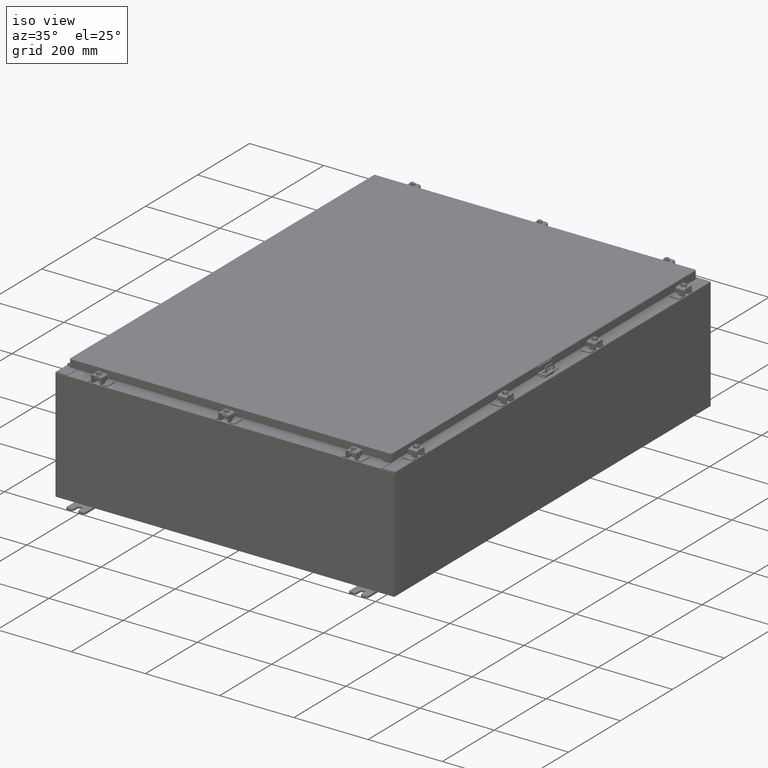
[diagram: clean part render]
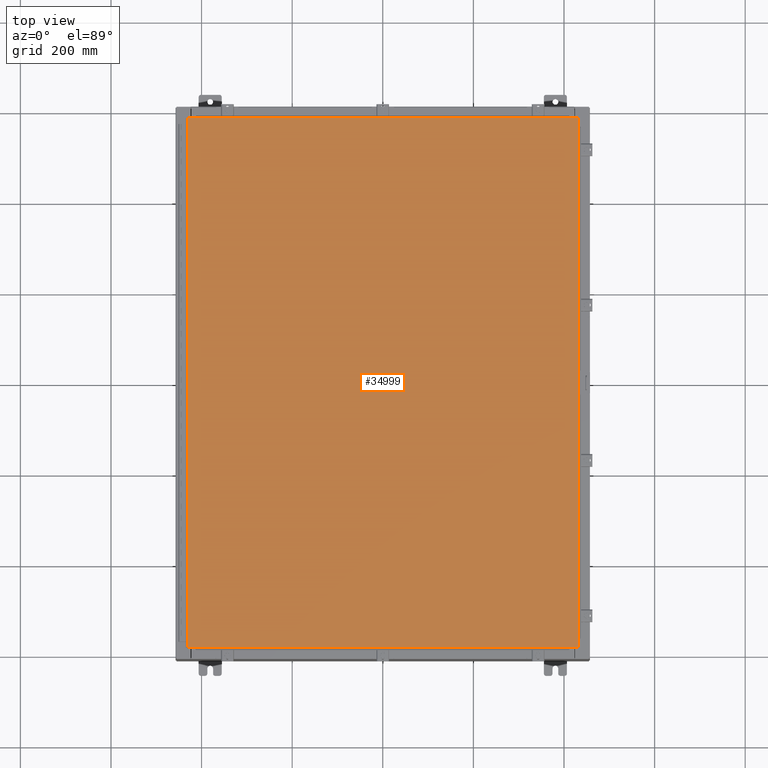
[diagram: tour spotlight — one face highlighted and labeled with its STEP entity id]
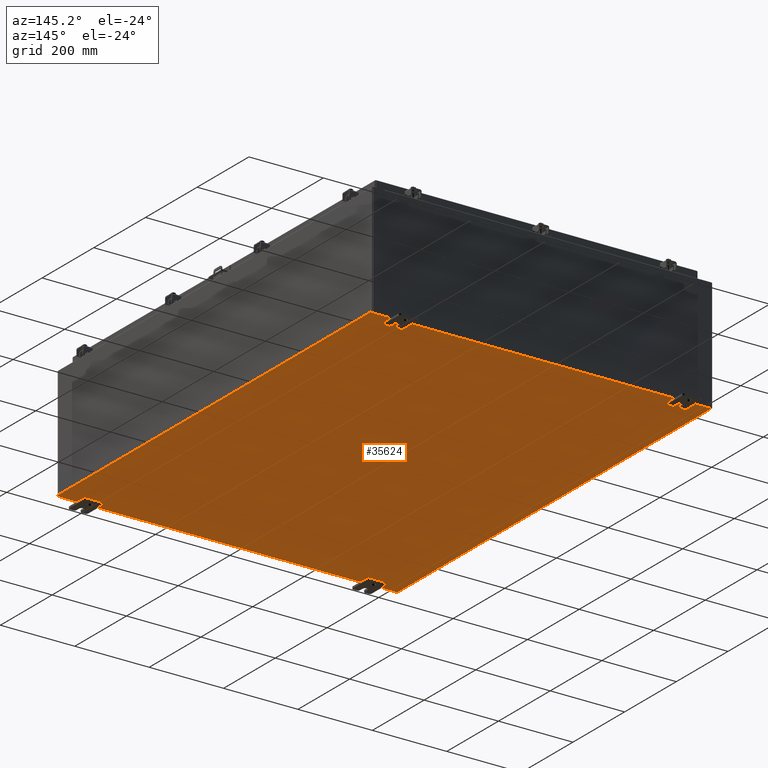
[diagram: tour spotlight — one face highlighted and labeled with its STEP entity id]
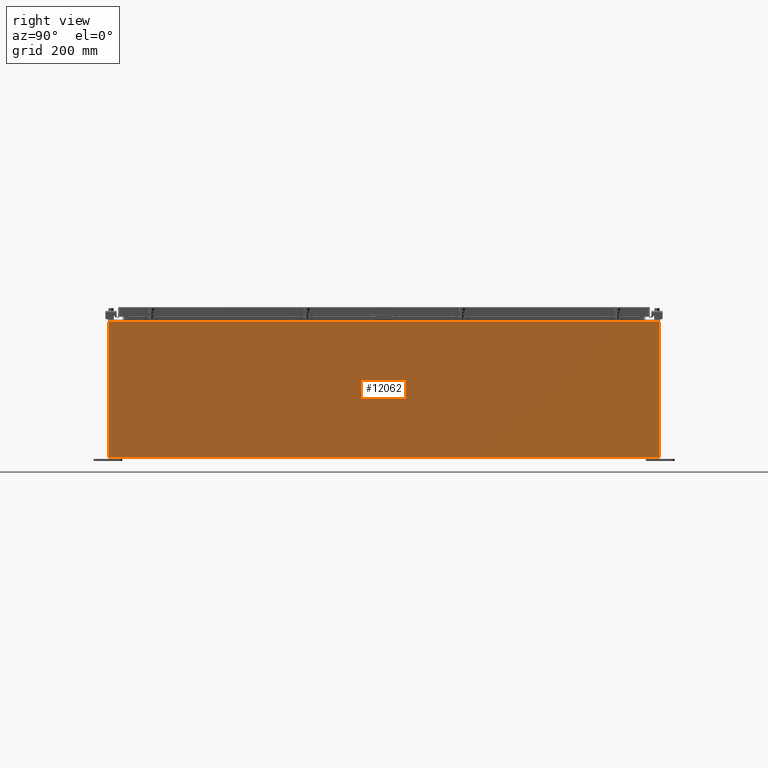
[diagram: tour spotlight — one face highlighted and labeled with its STEP entity id]
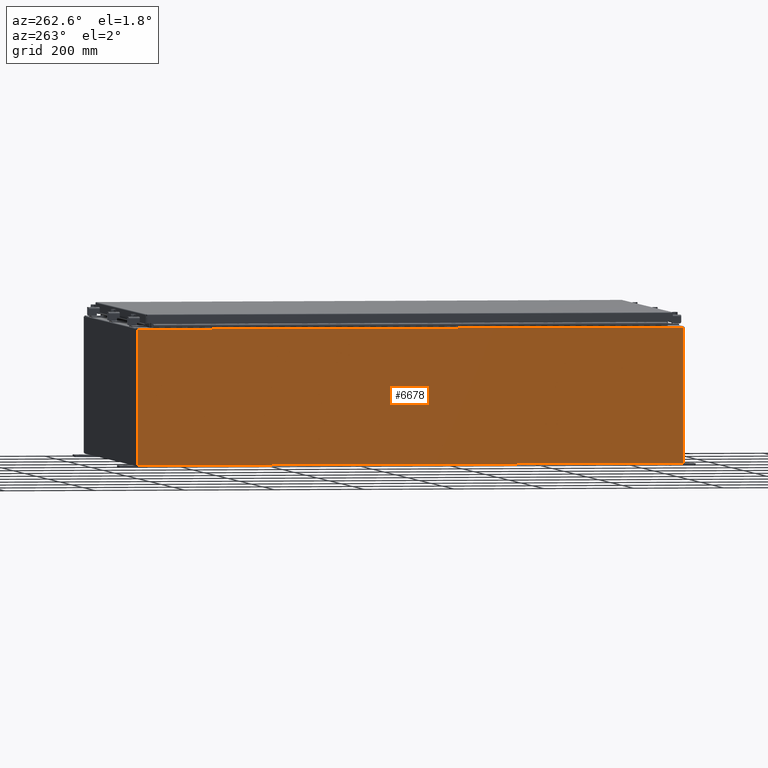
[diagram: tour spotlight — one face highlighted and labeled with its STEP entity id]
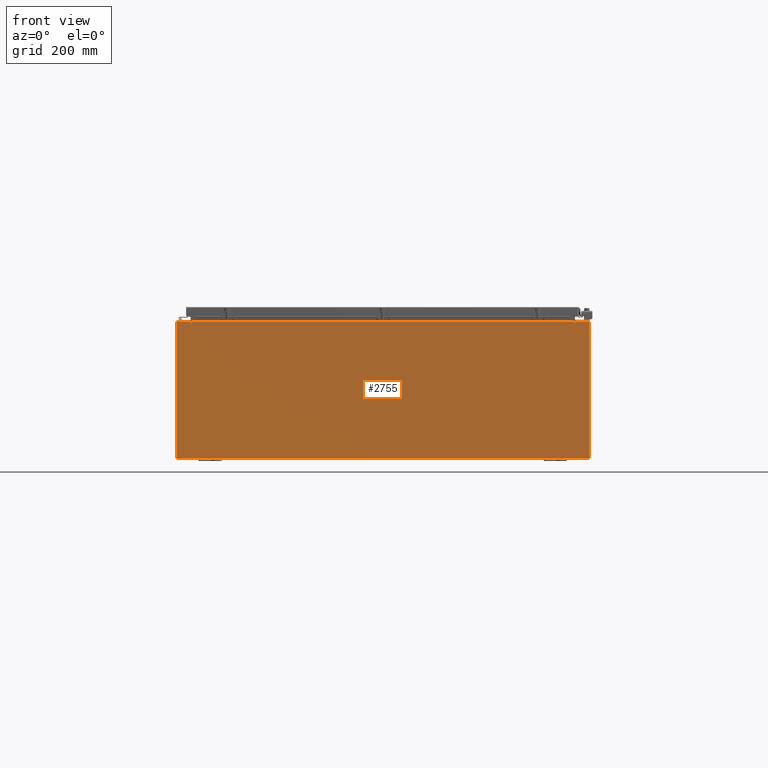
[diagram: tour spotlight — one face highlighted and labeled with its STEP entity id]
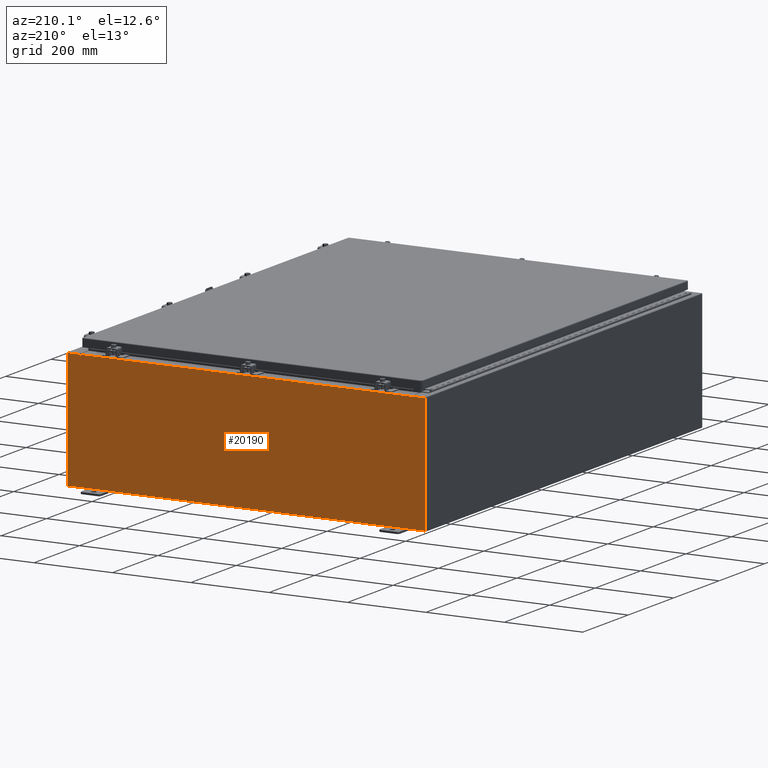
[diagram: tour spotlight — one face highlighted and labeled with its STEP entity id]
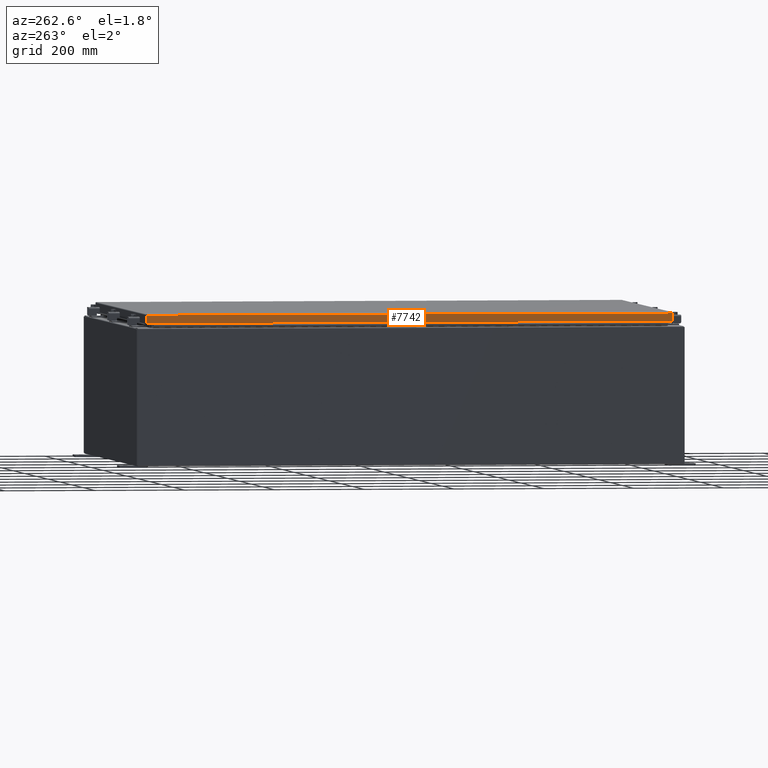
[diagram: tour spotlight — one face highlighted and labeled with its STEP entity id]
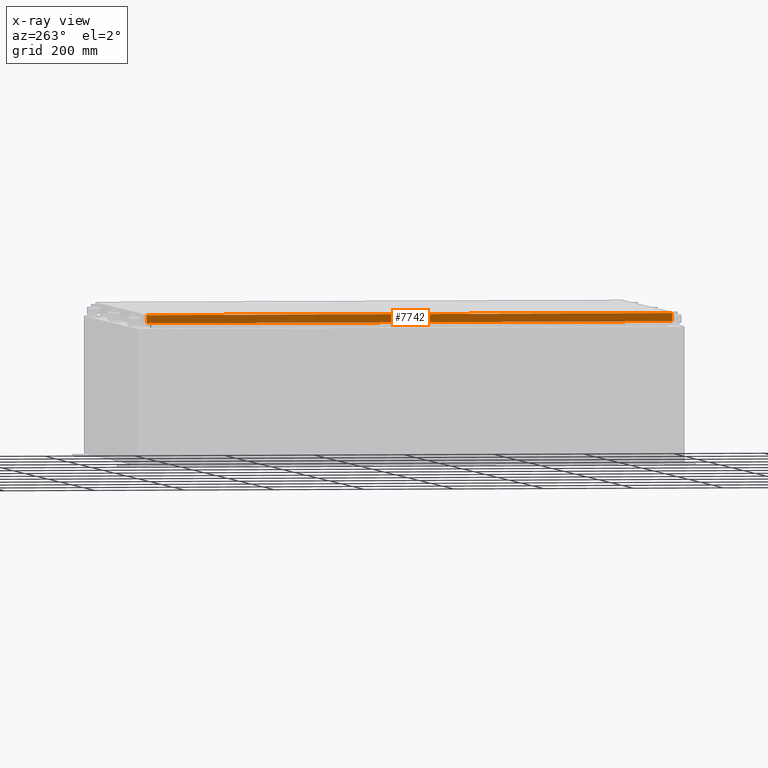
[diagram: x-ray of the same camera — body ghosted, this tour face saturated]
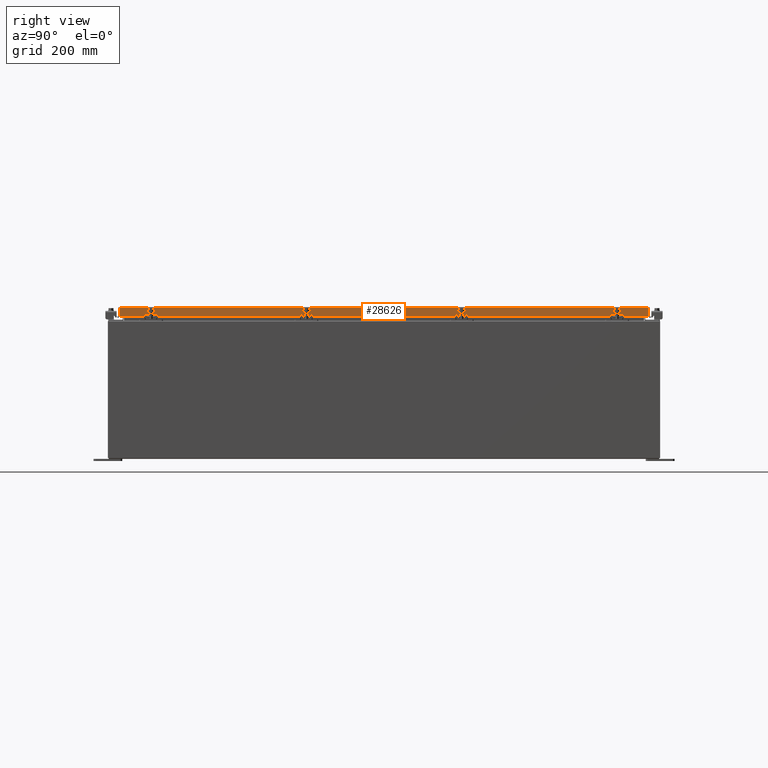
[diagram: tour spotlight — one face highlighted and labeled with its STEP entity id]
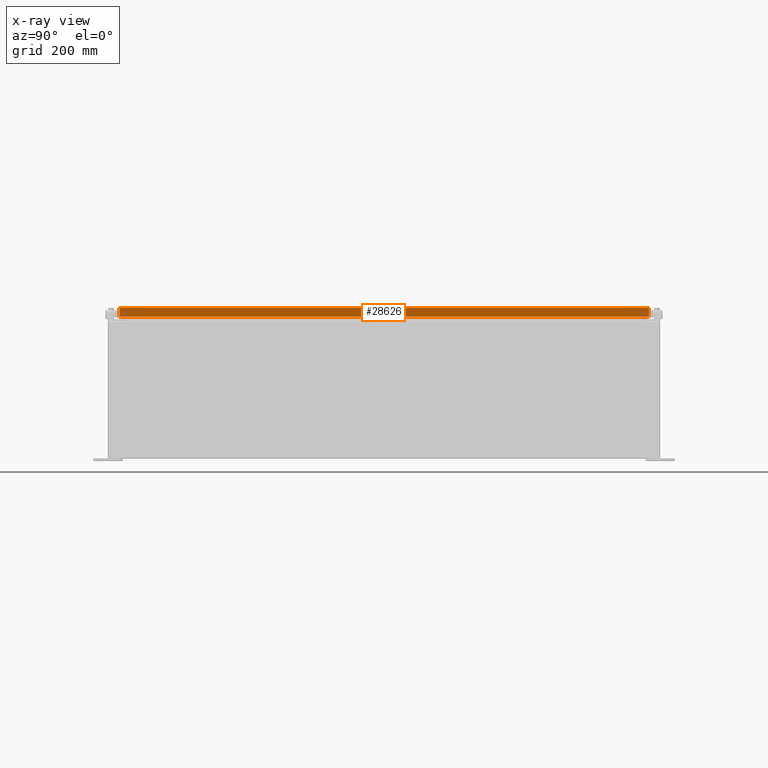
[diagram: x-ray of the same camera — body ghosted, this tour face saturated]
A machine part: a face-by-face anatomy tour. The part has 3115 B-rep faces; the first image is the clean iso view, then the 8 largest visible faces are spotlighted one at a time (largest first), each with its STEP entity span.

Face 1 — top view, entity #34999. In plain terms, the highlighted planar face has unit normal (0, 0, -1).
Definition (entity closure, byte-faithful):
#3818 = CARTESIAN_POINT ( 'NONE',  ( -16.99029999999998400, 23.00630000000001000, -2.185478394931410600E-015 ) ) ;
#3933 = ORIENTED_EDGE ( 'NONE', *, *, #45377, .T. ) ;
#6550 = LINE ( 'NONE', #10605, #27957 ) ;
#7895 = LINE ( 'NONE', #3818, #49281 ) ;
#10605 = CARTESIAN_POINT ( 'NONE',  ( -16.99029999999999800, -23.00630000000000300, 2.185478394931410600E-015 ) ) ;
#10749 = VERTEX_POINT ( 'NONE', #33810 ) ;
#12261 = EDGE_CURVE ( 'NONE', #33669, #36243, #7895, .T. ) ;
#14615 = VERTEX_POINT ( 'NONE', #17972 ) ;
#16515 = EDGE_LOOP ( 'NONE', ( #25681, #36708, #3933, #17167 ) ) ;
#17167 = ORIENTED_EDGE ( 'NONE', *, *, #12261, .T. ) ;
#17231 = LINE ( 'NONE', #33685, #27251 ) ;
#17972 = CARTESIAN_POINT ( 'NONE',  ( 16.99029999999999800, -23.00630000000000300, 0.0000000000000000000 ) ) ;
#19678 = DIRECTION ( 'NONE',  ( -1.000000000000000000, 0.0000000000000000000, -0.0000000000000000000 ) ) ;
#23776 = CARTESIAN_POINT ( 'NONE',  ( 0.0000000000000000000, 0.0000000000000000000, 0.0000000000000000000 ) ) ;
#25029 = EDGE_CURVE ( 'NONE', #36243, #14615, #6550, .T. ) ;
#25483 = DIRECTION ( 'NONE',  ( 0.0000000000000000000, -1.000000000000000000, 0.0000000000000000000 ) ) ;
#25681 = ORIENTED_EDGE ( 'NONE', *, *, #25029, .T. ) ;
#27251 = VECTOR ( 'NONE', #33871, 39.37007874015748100 ) ;
#27957 = VECTOR ( 'NONE', #44777, 39.37007874015748100 ) ;
#28892 = CARTESIAN_POINT ( 'NONE',  ( -16.99029999999999800, -23.00630000000000300, 2.185478394931410600E-015 ) ) ;
#32158 = AXIS2_PLACEMENT_3D ( 'NONE', #23776, #45252, #19678 ) ;
#33445 = DIRECTION ( 'NONE',  ( -1.000000000000000000, -0.0000000000000000000, -0.0000000000000000000 ) ) ;
#33669 = VERTEX_POINT ( 'NONE', #53001 ) ;
#33685 = CARTESIAN_POINT ( 'NONE',  ( 16.99029999999999800, -23.00630000000000300, 0.0000000000000000000 ) ) ;
#33810 = CARTESIAN_POINT ( 'NONE',  ( 16.99029999999999800, 23.00630000000001000, 2.185478394931410600E-015 ) ) ;
#33871 = DIRECTION ( 'NONE',  ( 0.0000000000000000000, 1.000000000000000000, 0.0000000000000000000 ) ) ;
#34999 = ADVANCED_FACE ( 'NONE', ( #55164 ), #45055, .F. ) ;
#36243 = VERTEX_POINT ( 'NONE', #28892 ) ;
#36708 = ORIENTED_EDGE ( 'NONE', *, *, #44828, .T. ) ;
#37732 = CARTESIAN_POINT ( 'NONE',  ( 16.99029999999999800, 23.00630000000001000, 2.185478394931410600E-015 ) ) ;
#44530 = VECTOR ( 'NONE', #33445, 39.37007874015748100 ) ;
#44777 = DIRECTION ( 'NONE',  ( 1.000000000000000000, -0.0000000000000000000, -0.0000000000000000000 ) ) ;
#44828 = EDGE_CURVE ( 'NONE', #14615, #10749, #17231, .T. ) ;
#45055 = PLANE ( 'NONE',  #32158 ) ;
#45252 = DIRECTION ( 'NONE',  ( 0.0000000000000000000, 0.0000000000000000000, -1.000000000000000000 ) ) ;
#45377 = EDGE_CURVE ( 'NONE', #10749, #33669, #47214, .T. ) ;
#47214 = LINE ( 'NONE', #37732, #44530 ) ;
#49281 = VECTOR ( 'NONE', #25483, 39.37007874015748100 ) ;
#53001 = CARTESIAN_POINT ( 'NONE',  ( -16.99029999999998400, 23.00630000000001000, -2.185478394931410600E-015 ) ) ;
#55164 = FACE_OUTER_BOUND ( 'NONE', #16515, .T. ) ;

Face 2 — auxiliary view, entity #35624. In plain terms, the highlighted planar face has unit normal (0, 0, -1).
Definition (entity closure, byte-faithful):
#292 = AXIS2_PLACEMENT_3D ( 'NONE', #23700, #36591, #11004 ) ;
#881 = VECTOR ( 'NONE', #7656, 39.37007874015748100 ) ;
#2393 = PLANE ( 'NONE',  #292 ) ;
#2821 = LINE ( 'NONE', #54660, #24222 ) ;
#4912 = LINE ( 'NONE', #40803, #14933 ) ;
#5675 = FACE_OUTER_BOUND ( 'NONE', #9224, .T. ) ;
#7656 = DIRECTION ( 'NONE',  ( -0.0000000000000000000, 1.000000000000000000, -0.0000000000000000000 ) ) ;
#7847 = DIRECTION ( 'NONE',  ( 1.000000000000000000, 1.214154663850783700E-016, 0.0000000000000000000 ) ) ;
#8036 = EDGE_CURVE ( 'NONE', #43776, #44877, #4912, .T. ) ;
#8827 = EDGE_CURVE ( 'NONE', #9049, #44877, #2821, .T. ) ;
#9049 = VERTEX_POINT ( 'NONE', #47755 ) ;
#9224 = EDGE_LOOP ( 'NONE', ( #32586, #40580, #11742, #55209 ) ) ;
#11004 = DIRECTION ( 'NONE',  ( -1.000000000000000000, 0.0000000000000000000, -0.0000000000000000000 ) ) ;
#11742 = ORIENTED_EDGE ( 'NONE', *, *, #55109, .F. ) ;
#13785 = VERTEX_POINT ( 'NONE', #44209 ) ;
#14569 = VECTOR ( 'NONE', #41676, 39.37007874015748100 ) ;
#14933 = VECTOR ( 'NONE', #32218, 39.37007874015748100 ) ;
#17075 = CARTESIAN_POINT ( 'NONE',  ( 17.91229999999999500, -23.92530000000000000, -0.07469999999999998900 ) ) ;
#23700 = CARTESIAN_POINT ( 'NONE',  ( 0.0000000000000000000, 0.0000000000000000000, -0.07469999999999998900 ) ) ;
#24222 = VECTOR ( 'NONE', #7847, 39.37007874015748100 ) ;
#32218 = DIRECTION ( 'NONE',  ( -0.0000000000000000000, -1.000000000000000000, -8.208677865577646300E-017 ) ) ;
#32586 = ORIENTED_EDGE ( 'NONE', *, *, #8827, .F. ) ;
#35624 = ADVANCED_FACE ( 'NONE', ( #5675 ), #2393, .T. ) ;
#36591 = DIRECTION ( 'NONE',  ( 0.0000000000000000000, 0.0000000000000000000, -1.000000000000000000 ) ) ;
#37094 = CARTESIAN_POINT ( 'NONE',  ( 17.91229999999999500, 23.92529999999998600, -0.07469999999999688000 ) ) ;
#37381 = CARTESIAN_POINT ( 'NONE',  ( -18.00000000000000400, 23.92530000000000000, -0.07469999999999998900 ) ) ;
#37532 = CARTESIAN_POINT ( 'NONE',  ( -17.91230000000000500, -23.92529999999998900, -0.07469999999999996100 ) ) ;
#38651 = LINE ( 'NONE', #37381, #14569 ) ;
#40580 = ORIENTED_EDGE ( 'NONE', *, *, #41119, .T. ) ;
#40803 = CARTESIAN_POINT ( 'NONE',  ( 17.91229999999999500, 23.92529999999998900, -0.07469999999999688000 ) ) ;
#41119 = EDGE_CURVE ( 'NONE', #9049, #13785, #46339, .T. ) ;
#41676 = DIRECTION ( 'NONE',  ( -1.000000000000000000, -0.0000000000000000000, -0.0000000000000000000 ) ) ;
#43776 = VERTEX_POINT ( 'NONE', #37094 ) ;
#44209 = CARTESIAN_POINT ( 'NONE',  ( -17.91230000000000500, 23.92529999999998900, -0.07469999999999998900 ) ) ;
#44877 = VERTEX_POINT ( 'NONE', #17075 ) ;
#46339 = LINE ( 'NONE', #37532, #881 ) ;
#47755 = CARTESIAN_POINT ( 'NONE',  ( -17.91230000000000500, -23.92529999999998600, -0.07469999999999996100 ) ) ;
#54660 = CARTESIAN_POINT ( 'NONE',  ( -18.00000000000000400, -23.92530000000000400, -0.07469999999999998900 ) ) ;
#55109 = EDGE_CURVE ( 'NONE', #43776, #13785, #38651, .T. ) ;
#55209 = ORIENTED_EDGE ( 'NONE', *, *, #8036, .T. ) ;

Face 3 — right view, entity #12062. In plain terms, the highlighted planar face has unit normal (-1, 0, 0).
Definition (entity closure, byte-faithful):
#2394 = LINE ( 'NONE', #44686, #23797 ) ;
#2894 = CARTESIAN_POINT ( 'NONE',  ( 17.99999999999999600, 0.0000000000000000000, -6.293494815404046100E-014 ) ) ;
#3059 = VERTEX_POINT ( 'NONE', #36049 ) ;
#5367 = VECTOR ( 'NONE', #53531, 39.37007874015748100 ) ;
#7198 = DIRECTION ( 'NONE',  ( 3.482016343714355100E-015, 0.0000000000000000000, 1.000000000000000000 ) ) ;
#8542 = VECTOR ( 'NONE', #13520, 39.37007874015748100 ) ;
#9221 = CARTESIAN_POINT ( 'NONE',  ( 18.00000000000003900, 23.92529999999998900, 11.83760000000000200 ) ) ;
#9438 = CARTESIAN_POINT ( 'NONE',  ( 17.99999999999999600, -23.92529999999998900, -6.293494815404046100E-014 ) ) ;
#9747 = EDGE_CURVE ( 'NONE', #44353, #3059, #13508, .T. ) ;
#10856 = ORIENTED_EDGE ( 'NONE', *, *, #43170, .T. ) ;
#11886 = ORIENTED_EDGE ( 'NONE', *, *, #9747, .T. ) ;
#12062 = ADVANCED_FACE ( 'NONE', ( #24599 ), #54028, .F. ) ;
#12359 = EDGE_CURVE ( 'NONE', #50318, #44353, #42619, .T. ) ;
#13372 = VERTEX_POINT ( 'NONE', #20502 ) ;
#13508 = LINE ( 'NONE', #9438, #33558 ) ;
#13520 = DIRECTION ( 'NONE',  ( -0.0000000000000000000, -1.000000000000000000, -0.0000000000000000000 ) ) ;
#19414 = CARTESIAN_POINT ( 'NONE',  ( 17.99999999999999600, 23.92529999999998900, -6.293494815404046100E-014 ) ) ;
#20502 = CARTESIAN_POINT ( 'NONE',  ( 17.99999999999999600, 23.92529999999998600, 0.01300000000000203600 ) ) ;
#23797 = VECTOR ( 'NONE', #48957, 39.37007874015748100 ) ;
#24599 = FACE_OUTER_BOUND ( 'NONE', #38932, .T. ) ;
#27567 = DIRECTION ( 'NONE',  ( -3.482016343714355500E-015, 0.0000000000000000000, -1.000000000000000000 ) ) ;
#30477 = CARTESIAN_POINT ( 'NONE',  ( 18.00000000000003900, 23.92529999999998600, 11.83760000000000200 ) ) ;
#32806 = DIRECTION ( 'NONE',  ( -1.000000000000000000, 0.0000000000000000000, 3.482016343714355100E-015 ) ) ;
#33558 = VECTOR ( 'NONE', #27567, 39.37007874015748100 ) ;
#34932 = EDGE_CURVE ( 'NONE', #13372, #3059, #2394, .T. ) ;
#36049 = CARTESIAN_POINT ( 'NONE',  ( 17.99999999999999600, -23.92529999999998900, 0.01299999999999898100 ) ) ;
#36569 = ORIENTED_EDGE ( 'NONE', *, *, #12359, .T. ) ;
#38932 = EDGE_LOOP ( 'NONE', ( #36569, #11886, #52694, #10856 ) ) ;
#39524 = CARTESIAN_POINT ( 'NONE',  ( 18.00000000000003900, -23.92529999999998900, 11.83760000000000200 ) ) ;
#40794 = LINE ( 'NONE', #19414, #5367 ) ;
#42619 = LINE ( 'NONE', #9221, #8542 ) ;
#43170 = EDGE_CURVE ( 'NONE', #13372, #50318, #40794, .T. ) ;
#44353 = VERTEX_POINT ( 'NONE', #39524 ) ;
#44686 = CARTESIAN_POINT ( 'NONE',  ( 17.99999999999999600, -23.92529999999998900, 0.01299999999999985200 ) ) ;
#48196 = AXIS2_PLACEMENT_3D ( 'NONE', #2894, #32806, #7198 ) ;
#48957 = DIRECTION ( 'NONE',  ( -1.590339826456887700E-031, -1.000000000000000000, -4.567295697298285000E-017 ) ) ;
#50318 = VERTEX_POINT ( 'NONE', #30477 ) ;
#52694 = ORIENTED_EDGE ( 'NONE', *, *, #34932, .F. ) ;
#53531 = DIRECTION ( 'NONE',  ( 3.482016343714355500E-015, 0.0000000000000000000, 1.000000000000000000 ) ) ;
#54028 = PLANE ( 'NONE',  #48196 ) ;

Face 4 — auxiliary view, entity #6678. In plain terms, the highlighted planar face has unit normal (1, 0, 0).
Definition (entity closure, byte-faithful):
#2089 = CARTESIAN_POINT ( 'NONE',  ( -18.00000000000000400, -23.92529999999999600, -6.293494815404046100E-014 ) ) ;
#3721 = CARTESIAN_POINT ( 'NONE',  ( -18.00000000000000400, 23.92529999999998900, 0.01299999999999985200 ) ) ;
#4787 = ORIENTED_EDGE ( 'NONE', *, *, #41692, .T. ) ;
#4900 = FACE_OUTER_BOUND ( 'NONE', #41946, .T. ) ;
#6678 = ADVANCED_FACE ( 'NONE', ( #4900 ), #53348, .F. ) ;
#6692 = CARTESIAN_POINT ( 'NONE',  ( -18.00000000000000400, -23.92529999999998600, 0.01299999999999985200 ) ) ;
#6763 = CARTESIAN_POINT ( 'NONE',  ( -18.00000000000004600, -23.92529999999998600, 11.83760000000000200 ) ) ;
#8751 = DIRECTION ( 'NONE',  ( 0.0000000000000000000, 1.000000000000000000, 0.0000000000000000000 ) ) ;
#8841 = EDGE_CURVE ( 'NONE', #43186, #40530, #12865, .T. ) ;
#9133 = ORIENTED_EDGE ( 'NONE', *, *, #20095, .T. ) ;
#10060 = DIRECTION ( 'NONE',  ( 3.482016343714355500E-015, 0.0000000000000000000, -1.000000000000000000 ) ) ;
#10435 = AXIS2_PLACEMENT_3D ( 'NONE', #44984, #47996, #22437 ) ;
#12342 = ORIENTED_EDGE ( 'NONE', *, *, #8841, .F. ) ;
#12601 = EDGE_CURVE ( 'NONE', #43186, #12634, #44585, .T. ) ;
#12634 = VERTEX_POINT ( 'NONE', #6763 ) ;
#12865 = LINE ( 'NONE', #3721, #32925 ) ;
#19121 = DIRECTION ( 'NONE',  ( -3.482016343714355500E-015, 0.0000000000000000000, 1.000000000000000000 ) ) ;
#20095 = EDGE_CURVE ( 'NONE', #41831, #40530, #43060, .T. ) ;
#21877 = VECTOR ( 'NONE', #19121, 39.37007874015748100 ) ;
#22437 = DIRECTION ( 'NONE',  ( 3.482016343714355100E-015, 0.0000000000000000000, -1.000000000000000000 ) ) ;
#26829 = CARTESIAN_POINT ( 'NONE',  ( -18.00000000000004600, 23.92529999999998900, 11.83760000000000200 ) ) ;
#28353 = ORIENTED_EDGE ( 'NONE', *, *, #12601, .T. ) ;
#29319 = DIRECTION ( 'NONE',  ( -0.0000000000000000000, 1.000000000000000000, -0.0000000000000000000 ) ) ;
#29591 = LINE ( 'NONE', #34325, #42292 ) ;
#32925 = VECTOR ( 'NONE', #29319, 39.37007874015748100 ) ;
#33047 = VECTOR ( 'NONE', #10060, 39.37007874015748100 ) ;
#34325 = CARTESIAN_POINT ( 'NONE',  ( -18.00000000000004600, -23.92529999999998900, 11.83760000000000200 ) ) ;
#35632 = CARTESIAN_POINT ( 'NONE',  ( -18.00000000000000400, 23.92529999999998900, -6.293494815404046100E-014 ) ) ;
#40530 = VERTEX_POINT ( 'NONE', #49696 ) ;
#41692 = EDGE_CURVE ( 'NONE', #12634, #41831, #29591, .T. ) ;
#41831 = VERTEX_POINT ( 'NONE', #26829 ) ;
#41946 = EDGE_LOOP ( 'NONE', ( #4787, #9133, #12342, #28353 ) ) ;
#42292 = VECTOR ( 'NONE', #8751, 39.37007874015748100 ) ;
#43060 = LINE ( 'NONE', #35632, #33047 ) ;
#43186 = VERTEX_POINT ( 'NONE', #6692 ) ;
#44585 = LINE ( 'NONE', #2089, #21877 ) ;
#44984 = CARTESIAN_POINT ( 'NONE',  ( -18.00000000000000400, 0.0000000000000000000, -6.293494815404046100E-014 ) ) ;
#47996 = DIRECTION ( 'NONE',  ( 1.000000000000000000, 0.0000000000000000000, 3.482016343714355100E-015 ) ) ;
#49696 = CARTESIAN_POINT ( 'NONE',  ( -18.00000000000000400, 23.92529999999998900, 0.01299999999999985200 ) ) ;
#53348 = PLANE ( 'NONE',  #10435 ) ;

Face 5 — front view, entity #2755. In plain terms, the highlighted planar face has unit normal (0, 1, -0).
Definition (entity closure, byte-faithful):
#541 = AXIS2_PLACEMENT_3D ( 'NONE', #31986, #6379, #36260 ) ;
#2373 = VECTOR ( 'NONE', #37829, 39.37007874015748100 ) ;
#2421 = EDGE_CURVE ( 'NONE', #43807, #31854, #5380, .T. ) ;
#2755 = ADVANCED_FACE ( 'NONE', ( #30743 ), #4148, .F. ) ;
#2774 = LINE ( 'NONE', #24099, #14134 ) ;
#3120 = CARTESIAN_POINT ( 'NONE',  ( 16.63720000000000400, 0.0000000000000000000, 5.912300000000009900 ) ) ;
#3885 = VERTEX_POINT ( 'NONE', #31085 ) ;
#4148 = PLANE ( 'NONE',  #33185 ) ;
#4249 = CARTESIAN_POINT ( 'NONE',  ( -16.67455000000000000, 0.0000000000000000000, 5.874949999999986800 ) ) ;
#4626 = CARTESIAN_POINT ( 'NONE',  ( -17.92529999999999600, 0.0000000000000000000, 5.925299999999988500 ) ) ;
#5224 = ORIENTED_EDGE ( 'NONE', *, *, #40422, .F. ) ;
#5255 = EDGE_CURVE ( 'NONE', #31904, #32881, #23771, .T. ) ;
#5380 = LINE ( 'NONE', #43687, #34107 ) ;
#6379 = DIRECTION ( 'NONE',  ( 2.688223102148528000E-016, 1.000000000000000000, -1.677591767810434000E-016 ) ) ;
#6791 = VECTOR ( 'NONE', #49063, 39.37007874015748100 ) ;
#7067 = ORIENTED_EDGE ( 'NONE', *, *, #10476, .T. ) ;
#7080 = VECTOR ( 'NONE', #22989, 39.37007874015748100 ) ;
#7256 = LINE ( 'NONE', #31623, #51345 ) ;
#10088 = LINE ( 'NONE', #15156, #44138 ) ;
#10476 = EDGE_CURVE ( 'NONE', #11484, #31854, #10088, .T. ) ;
#11484 = VERTEX_POINT ( 'NONE', #24444 ) ;
#11630 = VERTEX_POINT ( 'NONE', #46826 ) ;
#11846 = VERTEX_POINT ( 'NONE', #35605 ) ;
#12074 = LINE ( 'NONE', #41588, #22100 ) ;
#14134 = VECTOR ( 'NONE', #53918, 39.37007874015748100 ) ;
#14877 = EDGE_CURVE ( 'NONE', #11846, #11630, #2774, .T. ) ;
#15156 = CARTESIAN_POINT ( 'NONE',  ( -16.63720000000000000, 0.0000000000000000000, 5.912299999999988600 ) ) ;
#16508 = CARTESIAN_POINT ( 'NONE',  ( 16.67455000000000700, 0.0000000000000000000, 5.925300000000009800 ) ) ;
#17051 = DIRECTION ( 'NONE',  ( -8.326672684688674100E-016, 1.677591767810434500E-016, -1.000000000000000000 ) ) ;
#17381 = DIRECTION ( 'NONE',  ( 2.688223102148528000E-016, 1.000000000000000000, -1.677591767810434000E-016 ) ) ;
#17466 = AXIS2_PLACEMENT_3D ( 'NONE', #42958, #17381, #47224 ) ;
#19910 = VERTEX_POINT ( 'NONE', #38658 ) ;
#20062 = ORIENTED_EDGE ( 'NONE', *, *, #14877, .T. ) ;
#20276 = CARTESIAN_POINT ( 'NONE',  ( 16.63720000000000400, 0.0000000000000000000, 5.874950000000009000 ) ) ;
#21007 = CARTESIAN_POINT ( 'NONE',  ( -16.67455000000000000, 0.0000000000000000000, -1.092739197465705300E-014 ) ) ;
#21462 = EDGE_LOOP ( 'NONE', ( #39679, #50665, #5224, #7067, #49454, #44213, #35516, #42240, #37729, #20062, #50288, #47897 ) ) ;
#21925 = EDGE_CURVE ( 'NONE', #19910, #11846, #29535, .T. ) ;
#22100 = VECTOR ( 'NONE', #33015, 39.37007874015748100 ) ;
#22989 = DIRECTION ( 'NONE',  ( 8.326672684688674100E-016, -1.677591767810434500E-016, 1.000000000000000000 ) ) ;
#23475 = EDGE_CURVE ( 'NONE', #32441, #3885, #12074, .T. ) ;
#23507 = CARTESIAN_POINT ( 'NONE',  ( 17.92530000000000400, 0.0000000000000000000, 5.925300000000009800 ) ) ;
#23771 = LINE ( 'NONE', #21007, #2373 ) ;
#23887 = CARTESIAN_POINT ( 'NONE',  ( -17.92529999999999600, 0.0000000000000000000, 5.925299999999988500 ) ) ;
#24099 = CARTESIAN_POINT ( 'NONE',  ( -17.92529999999999600, 0.0000000000000000000, -5.925300000000011600 ) ) ;
#24444 = CARTESIAN_POINT ( 'NONE',  ( -16.63720000000000000, 0.0000000000000000000, 5.912299999999988600 ) ) ;
#24788 = EDGE_CURVE ( 'NONE', #3885, #43807, #31309, .T. ) ;
#24820 = VERTEX_POINT ( 'NONE', #51686 ) ;
#26313 = EDGE_CURVE ( 'NONE', #11630, #34080, #49832, .T. ) ;
#27882 = CARTESIAN_POINT ( 'NONE',  ( -16.67455000000000000, 0.0000000000000000000, 5.925299999999988500 ) ) ;
#27997 = VECTOR ( 'NONE', #48674, 39.37007874015748100 ) ;
#29535 = LINE ( 'NONE', #23507, #6791 ) ;
#30743 = FACE_OUTER_BOUND ( 'NONE', #21462, .T. ) ;
#31085 = CARTESIAN_POINT ( 'NONE',  ( 16.67455000000000400, 0.0000000000000000000, 5.874950000000009000 ) ) ;
#31309 = CIRCLE ( 'NONE', #17466, 0.01867499999999949400 ) ;
#31623 = CARTESIAN_POINT ( 'NONE',  ( -16.63720000000000000, 0.0000000000000000000, -1.092739197465705300E-014 ) ) ;
#31854 = VERTEX_POINT ( 'NONE', #3120 ) ;
#31904 = VERTEX_POINT ( 'NONE', #4249 ) ;
#31986 = CARTESIAN_POINT ( 'NONE',  ( -16.65587499999999800, 0.0000000000000000000, 5.874949999999986800 ) ) ;
#32012 = LINE ( 'NONE', #44398, #27997 ) ;
#32441 = VERTEX_POINT ( 'NONE', #16508 ) ;
#32827 = EDGE_CURVE ( 'NONE', #24820, #31904, #47910, .T. ) ;
#32881 = VERTEX_POINT ( 'NONE', #27882 ) ;
#33015 = DIRECTION ( 'NONE',  ( -8.764412287646708500E-014, 1.677591767810201100E-016, -1.000000000000000000 ) ) ;
#33185 = AXIS2_PLACEMENT_3D ( 'NONE', #34034, #42626, #17051 ) ;
#34034 = CARTESIAN_POINT ( 'NONE',  ( 0.0000000000000000000, 0.0000000000000000000, 0.0000000000000000000 ) ) ;
#34080 = VERTEX_POINT ( 'NONE', #4626 ) ;
#34107 = VECTOR ( 'NONE', #39399, 39.37007874015748100 ) ;
#35516 = ORIENTED_EDGE ( 'NONE', *, *, #23475, .F. ) ;
#35605 = CARTESIAN_POINT ( 'NONE',  ( 17.92530000000000400, 0.0000000000000000000, -5.925299999999984000 ) ) ;
#36260 = DIRECTION ( 'NONE',  ( 0.0000000000000000000, 1.677591767810434500E-016, -1.000000000000000000 ) ) ;
#37715 = EDGE_CURVE ( 'NONE', #34080, #32881, #44199, .T. ) ;
#37729 = ORIENTED_EDGE ( 'NONE', *, *, #21925, .T. ) ;
#37829 = DIRECTION ( 'NONE',  ( 8.326672684688674100E-016, -1.677591767810434500E-016, 1.000000000000000000 ) ) ;
#38658 = CARTESIAN_POINT ( 'NONE',  ( 17.92530000000000400, 0.0000000000000000000, 5.925300000000009800 ) ) ;
#39399 = DIRECTION ( 'NONE',  ( 8.326672684688674100E-016, -1.677591767810434500E-016, 1.000000000000000000 ) ) ;
#39679 = ORIENTED_EDGE ( 'NONE', *, *, #5255, .F. ) ;
#40422 = EDGE_CURVE ( 'NONE', #11484, #24820, #7256, .T. ) ;
#41544 = VECTOR ( 'NONE', #49437, 39.37007874015748100 ) ;
#41588 = CARTESIAN_POINT ( 'NONE',  ( 16.67454999999949500, 0.0000000000000000000, -1.431488348680073800E-012 ) ) ;
#42240 = ORIENTED_EDGE ( 'NONE', *, *, #54839, .T. ) ;
#42626 = DIRECTION ( 'NONE',  ( -2.688223102148531000E-016, -1.000000000000000000, -1.677591767810432300E-016 ) ) ;
#42958 = CARTESIAN_POINT ( 'NONE',  ( 16.65587500000000500, 0.0000000000000000000, 5.874950000000009000 ) ) ;
#43687 = CARTESIAN_POINT ( 'NONE',  ( 16.63720000000000400, 0.0000000000000000000, 1.639108796198557900E-014 ) ) ;
#43807 = VERTEX_POINT ( 'NONE', #20276 ) ;
#44138 = VECTOR ( 'NONE', #45026, 39.37007874015748100 ) ;
#44199 = LINE ( 'NONE', #23887, #41544 ) ;
#44213 = ORIENTED_EDGE ( 'NONE', *, *, #24788, .F. ) ;
#44398 = CARTESIAN_POINT ( 'NONE',  ( -17.92529999999999600, 0.0000000000000000000, 5.925299999999988500 ) ) ;
#44483 = DIRECTION ( 'NONE',  ( -8.326672684688674100E-016, 1.677591767810434500E-016, -1.000000000000000000 ) ) ;
#45026 = DIRECTION ( 'NONE',  ( 1.000000000000000000, 2.688223102148527500E-016, 8.326672684688674100E-016 ) ) ;
#46826 = CARTESIAN_POINT ( 'NONE',  ( -17.92529999999999600, 0.0000000000000000000, -5.925300000000011600 ) ) ;
#47224 = DIRECTION ( 'NONE',  ( 0.0000000000000000000, 1.677591767810434500E-016, -1.000000000000000000 ) ) ;
#47897 = ORIENTED_EDGE ( 'NONE', *, *, #37715, .T. ) ;
#47910 = CIRCLE ( 'NONE', #541, 0.01867499999999949400 ) ;
#48674 = DIRECTION ( 'NONE',  ( 1.000000000000000000, 2.688223102148527500E-016, 8.631476285595129400E-016 ) ) ;
#49063 = DIRECTION ( 'NONE',  ( -8.326672684688674100E-016, 1.677591767810434500E-016, -1.000000000000000000 ) ) ;
#49437 = DIRECTION ( 'NONE',  ( 1.000000000000000000, 2.688223102148527500E-016, 8.631476285595129400E-016 ) ) ;
#49454 = ORIENTED_EDGE ( 'NONE', *, *, #2421, .F. ) ;
#49832 = LINE ( 'NONE', #52836, #7080 ) ;
#50288 = ORIENTED_EDGE ( 'NONE', *, *, #26313, .T. ) ;
#50665 = ORIENTED_EDGE ( 'NONE', *, *, #32827, .F. ) ;
#51345 = VECTOR ( 'NONE', #44483, 39.37007874015748100 ) ;
#51686 = CARTESIAN_POINT ( 'NONE',  ( -16.63720000000000000, 0.0000000000000000000, 5.874949999999986800 ) ) ;
#52836 = CARTESIAN_POINT ( 'NONE',  ( -17.92529999999999600, 0.0000000000000000000, 5.925299999999988500 ) ) ;
#53918 = DIRECTION ( 'NONE',  ( -1.000000000000000000, -2.688223102148527500E-016, -8.326672684688674100E-016 ) ) ;
#54839 = EDGE_CURVE ( 'NONE', #32441, #19910, #32012, .T. ) ;

Face 6 — auxiliary view, entity #20190. In plain terms, the highlighted planar face has unit normal (0, -1, 0).
Definition (entity closure, byte-faithful):
#146 = CARTESIAN_POINT ( 'NONE',  ( -17.92529999999999600, 0.0000000000000000000, 5.925299999999999100 ) ) ;
#391 = EDGE_CURVE ( 'NONE', #11473, #33983, #6333, .T. ) ;
#529 = VECTOR ( 'NONE', #42501, 39.37007874015748100 ) ;
#604 = EDGE_CURVE ( 'NONE', #33983, #3903, #30304, .T. ) ;
#1029 = CARTESIAN_POINT ( 'NONE',  ( -16.67455000000000000, 0.0000000000000000000, 5.925299999999999100 ) ) ;
#1047 = ORIENTED_EDGE ( 'NONE', *, *, #25163, .F. ) ;
#1663 = DIRECTION ( 'NONE',  ( 0.0000000000000000000, 0.0000000000000000000, -1.000000000000000000 ) ) ;
#3196 = ORIENTED_EDGE ( 'NONE', *, *, #391, .T. ) ;
#3666 = EDGE_CURVE ( 'NONE', #23016, #11815, #11917, .T. ) ;
#3759 = CARTESIAN_POINT ( 'NONE',  ( 16.67455000000000400, 0.0000000000000000000, 5.874949999999998300 ) ) ;
#3903 = VERTEX_POINT ( 'NONE', #29631 ) ;
#4931 = FACE_OUTER_BOUND ( 'NONE', #51645, .T. ) ;
#5386 = CIRCLE ( 'NONE', #11188, 0.01867499999999949400 ) ;
#6333 = LINE ( 'NONE', #48305, #49089 ) ;
#6376 = VERTEX_POINT ( 'NONE', #25606 ) ;
#6436 = LINE ( 'NONE', #33274, #50527 ) ;
#6712 = ORIENTED_EDGE ( 'NONE', *, *, #26066, .F. ) ;
#6738 = CARTESIAN_POINT ( 'NONE',  ( 16.67455000000000700, 0.0000000000000000000, 5.925299999999999100 ) ) ;
#7070 = LINE ( 'NONE', #7576, #28487 ) ;
#7132 = LINE ( 'NONE', #51305, #17171 ) ;
#7289 = VECTOR ( 'NONE', #42764, 39.37007874015748100 ) ;
#7505 = DIRECTION ( 'NONE',  ( 0.0000000000000000000, 0.0000000000000000000, 1.000000000000000000 ) ) ;
#7576 = CARTESIAN_POINT ( 'NONE',  ( -16.63720000000000000, 0.0000000000000000000, 5.912299999999999200 ) ) ;
#8324 = CARTESIAN_POINT ( 'NONE',  ( -16.67455000000000000, 0.0000000000000000000, 0.0000000000000000000 ) ) ;
#9064 = DIRECTION ( 'NONE',  ( 1.000000000000000000, 0.0000000000000000000, 3.048036009064577000E-017 ) ) ;
#9758 = CARTESIAN_POINT ( 'NONE',  ( -16.63720000000000000, 0.0000000000000000000, 5.874949999999998300 ) ) ;
#9875 = DIRECTION ( 'NONE',  ( 0.0000000000000000000, 0.0000000000000000000, -1.000000000000000000 ) ) ;
#10906 = ORIENTED_EDGE ( 'NONE', *, *, #39199, .F. ) ;
#11077 = CARTESIAN_POINT ( 'NONE',  ( 16.67454999999949500, 0.0000000000000000000, -1.447879436642059600E-012 ) ) ;
#11188 = AXIS2_PLACEMENT_3D ( 'NONE', #52824, #27280, #1663 ) ;
#11473 = VERTEX_POINT ( 'NONE', #41446 ) ;
#11815 = VERTEX_POINT ( 'NONE', #1029 ) ;
#11917 = LINE ( 'NONE', #8324, #529 ) ;
#12123 = CARTESIAN_POINT ( 'NONE',  ( -17.92529999999999600, 0.0000000000000000000, 5.925299999999999100 ) ) ;
#12725 = LINE ( 'NONE', #21950, #45450 ) ;
#12934 = AXIS2_PLACEMENT_3D ( 'NONE', #44584, #49055, #23498 ) ;
#15363 = DIRECTION ( 'NONE',  ( -8.681145560799821800E-014, 0.0000000000000000000, -1.000000000000000000 ) ) ;
#15819 = CARTESIAN_POINT ( 'NONE',  ( -17.92529999999999600, 0.0000000000000000000, -5.925300000000000000 ) ) ;
#16672 = ORIENTED_EDGE ( 'NONE', *, *, #604, .T. ) ;
#17171 = VECTOR ( 'NONE', #25551, 39.37007874015748100 ) ;
#18492 = EDGE_CURVE ( 'NONE', #3903, #41141, #7132, .T. ) ;
#18943 = VECTOR ( 'NONE', #45694, 39.37007874015748100 ) ;
#18995 = EDGE_CURVE ( 'NONE', #6376, #33741, #7070, .T. ) ;
#20190 = ADVANCED_FACE ( 'NONE', ( #4931 ), #53148, .F. ) ;
#21950 = CARTESIAN_POINT ( 'NONE',  ( -17.92529999999999600, 0.0000000000000000000, 5.925299999999999100 ) ) ;
#22912 = CARTESIAN_POINT ( 'NONE',  ( -16.65587499999999800, 0.0000000000000000000, 5.874949999999998300 ) ) ;
#23016 = VERTEX_POINT ( 'NONE', #38085 ) ;
#23498 = DIRECTION ( 'NONE',  ( 0.0000000000000000000, -0.0000000000000000000, -1.000000000000000000 ) ) ;
#23723 = EDGE_CURVE ( 'NONE', #41141, #11815, #12725, .T. ) ;
#24506 = VERTEX_POINT ( 'NONE', #6738 ) ;
#24748 = DIRECTION ( 'NONE',  ( 1.000000000000000000, 0.0000000000000000000, 0.0000000000000000000 ) ) ;
#25111 = ORIENTED_EDGE ( 'NONE', *, *, #18995, .T. ) ;
#25163 = EDGE_CURVE ( 'NONE', #48134, #23016, #45293, .T. ) ;
#25551 = DIRECTION ( 'NONE',  ( -0.0000000000000000000, -0.0000000000000000000, 1.000000000000000000 ) ) ;
#25606 = CARTESIAN_POINT ( 'NONE',  ( -16.63720000000000000, 0.0000000000000000000, 5.912299999999999200 ) ) ;
#26024 = VECTOR ( 'NONE', #9875, 39.37007874015748100 ) ;
#26066 = EDGE_CURVE ( 'NONE', #32797, #33741, #6436, .T. ) ;
#27209 = DIRECTION ( 'NONE',  ( 0.0000000000000000000, 0.0000000000000000000, -1.000000000000000000 ) ) ;
#27280 = DIRECTION ( 'NONE',  ( -0.0000000000000000000, 1.000000000000000000, -0.0000000000000000000 ) ) ;
#27326 = ORIENTED_EDGE ( 'NONE', *, *, #31576, .F. ) ;
#28487 = VECTOR ( 'NONE', #24748, 39.37007874015748100 ) ;
#29631 = CARTESIAN_POINT ( 'NONE',  ( -17.92529999999999600, 0.0000000000000000000, -5.925300000000000000 ) ) ;
#29744 = ORIENTED_EDGE ( 'NONE', *, *, #37124, .F. ) ;
#30304 = LINE ( 'NONE', #15819, #18943 ) ;
#31576 = EDGE_CURVE ( 'NONE', #6376, #48134, #36040, .T. ) ;
#31753 = ORIENTED_EDGE ( 'NONE', *, *, #54577, .T. ) ;
#32797 = VERTEX_POINT ( 'NONE', #44281 ) ;
#33274 = CARTESIAN_POINT ( 'NONE',  ( 16.63720000000000400, 0.0000000000000000000, 0.0000000000000000000 ) ) ;
#33741 = VERTEX_POINT ( 'NONE', #45187 ) ;
#33983 = VERTEX_POINT ( 'NONE', #42748 ) ;
#35203 = ORIENTED_EDGE ( 'NONE', *, *, #3666, .F. ) ;
#35460 = CARTESIAN_POINT ( 'NONE',  ( -16.63720000000000000, 0.0000000000000000000, 0.0000000000000000000 ) ) ;
#35588 = VECTOR ( 'NONE', #15363, 39.37007874015748100 ) ;
#35633 = DIRECTION ( 'NONE',  ( 0.0000000000000000000, 0.0000000000000000000, -1.000000000000000000 ) ) ;
#36040 = LINE ( 'NONE', #35460, #26024 ) ;
#36259 = ORIENTED_EDGE ( 'NONE', *, *, #18492, .T. ) ;
#37124 = EDGE_CURVE ( 'NONE', #24506, #37228, #46939, .T. ) ;
#37228 = VERTEX_POINT ( 'NONE', #3759 ) ;
#37255 = ORIENTED_EDGE ( 'NONE', *, *, #23723, .T. ) ;
#38085 = CARTESIAN_POINT ( 'NONE',  ( -16.67455000000000000, 0.0000000000000000000, 5.874949999999998300 ) ) ;
#39199 = EDGE_CURVE ( 'NONE', #37228, #32797, #5386, .T. ) ;
#39280 = AXIS2_PLACEMENT_3D ( 'NONE', #22912, #52758, #27209 ) ;
#41141 = VERTEX_POINT ( 'NONE', #12123 ) ;
#41370 = LINE ( 'NONE', #146, #7289 ) ;
#41446 = CARTESIAN_POINT ( 'NONE',  ( 17.92530000000000400, 0.0000000000000000000, 5.925299999999999100 ) ) ;
#42501 = DIRECTION ( 'NONE',  ( 0.0000000000000000000, 0.0000000000000000000, 1.000000000000000000 ) ) ;
#42748 = CARTESIAN_POINT ( 'NONE',  ( 17.92530000000000400, 0.0000000000000000000, -5.925300000000000000 ) ) ;
#42764 = DIRECTION ( 'NONE',  ( 1.000000000000000000, 0.0000000000000000000, 3.048036009064577000E-017 ) ) ;
#44281 = CARTESIAN_POINT ( 'NONE',  ( 16.63720000000000400, 0.0000000000000000000, 5.874949999999998300 ) ) ;
#44584 = CARTESIAN_POINT ( 'NONE',  ( 0.0000000000000000000, 0.0000000000000000000, 0.0000000000000000000 ) ) ;
#45187 = CARTESIAN_POINT ( 'NONE',  ( 16.63720000000000400, 0.0000000000000000000, 5.912299999999999200 ) ) ;
#45293 = CIRCLE ( 'NONE', #39280, 0.01867499999999949400 ) ;
#45450 = VECTOR ( 'NONE', #9064, 39.37007874015748100 ) ;
#45694 = DIRECTION ( 'NONE',  ( -1.000000000000000000, -0.0000000000000000000, -0.0000000000000000000 ) ) ;
#46939 = LINE ( 'NONE', #11077, #35588 ) ;
#48134 = VERTEX_POINT ( 'NONE', #9758 ) ;
#48305 = CARTESIAN_POINT ( 'NONE',  ( 17.92530000000000400, 0.0000000000000000000, 5.925299999999999100 ) ) ;
#49055 = DIRECTION ( 'NONE',  ( 0.0000000000000000000, -1.000000000000000000, 0.0000000000000000000 ) ) ;
#49089 = VECTOR ( 'NONE', #35633, 39.37007874015748100 ) ;
#50527 = VECTOR ( 'NONE', #7505, 39.37007874015748100 ) ;
#51305 = CARTESIAN_POINT ( 'NONE',  ( -17.92529999999999600, 0.0000000000000000000, 5.925299999999999100 ) ) ;
#51645 = EDGE_LOOP ( 'NONE', ( #35203, #1047, #27326, #25111, #6712, #10906, #29744, #31753, #3196, #16672, #36259, #37255 ) ) ;
#52758 = DIRECTION ( 'NONE',  ( -0.0000000000000000000, 1.000000000000000000, -0.0000000000000000000 ) ) ;
#52824 = CARTESIAN_POINT ( 'NONE',  ( 16.65587500000000500, 0.0000000000000000000, 5.874949999999998300 ) ) ;
#53148 = PLANE ( 'NONE',  #12934 ) ;
#54577 = EDGE_CURVE ( 'NONE', #24506, #11473, #41370, .T. ) ;

Face 7 — auxiliary view, entity #7742. An x-ray twin of the same camera follows (body ghosted, this face saturated) — the face is partly hidden behind the body. In plain terms, the highlighted planar face has unit normal (1, -0, -0).
Definition (entity closure, byte-faithful):
#286 = DIRECTION ( 'NONE',  ( -3.034122441942816500E-015, 0.0000000000000000000, -1.000000000000000000 ) ) ;
#898 = CARTESIAN_POINT ( 'NONE',  ( -17.07800000000000300, -23.00515786437626900, -0.7949999999999984900 ) ) ;
#1887 = DIRECTION ( 'NONE',  ( -3.034122441942816100E-015, 6.982962677686267500E-015, -1.000000000000000000 ) ) ;
#2430 = VERTEX_POINT ( 'NONE', #898 ) ;
#3608 = ORIENTED_EDGE ( 'NONE', *, *, #20625, .F. ) ;
#5509 = LINE ( 'NONE', #46352, #26886 ) ;
#7742 = ADVANCED_FACE ( 'NONE', ( #9634 ), #17323, .F. ) ;
#9634 = FACE_OUTER_BOUND ( 'NONE', #14618, .T. ) ;
#10707 = VERTEX_POINT ( 'NONE', #25211 ) ;
#11166 = LINE ( 'NONE', #27317, #32554 ) ;
#13575 = ORIENTED_EDGE ( 'NONE', *, *, #45151, .F. ) ;
#14403 = EDGE_CURVE ( 'NONE', #54687, #43658, #5509, .T. ) ;
#14618 = EDGE_LOOP ( 'NONE', ( #22691, #21442, #3608, #13575 ) ) ;
#17323 = PLANE ( 'NONE',  #50163 ) ;
#17439 = DIRECTION ( 'NONE',  ( -9.463403459476019000E-017, -1.000000000000000000, 1.419510518921414800E-016 ) ) ;
#20305 = LINE ( 'NONE', #22498, #54342 ) ;
#20625 = EDGE_CURVE ( 'NONE', #2430, #43658, #20305, .T. ) ;
#21442 = ORIENTED_EDGE ( 'NONE', *, *, #14403, .T. ) ;
#21605 = CARTESIAN_POINT ( 'NONE',  ( -17.07799999999999600, 1.616160042716280000E-015, 5.245148147835385400E-014 ) ) ;
#22498 = CARTESIAN_POINT ( 'NONE',  ( -17.07800000000000300, -23.09400000000000100, -0.7950000000000007100 ) ) ;
#22691 = ORIENTED_EDGE ( 'NONE', *, *, #29283, .F. ) ;
#25211 = CARTESIAN_POINT ( 'NONE',  ( -17.07799999999999900, -23.00515786437626900, -0.08770000000000245700 ) ) ;
#25892 = DIRECTION ( 'NONE',  ( 1.000000000000000000, -9.463403459476060900E-017, -3.034122441942816500E-015 ) ) ;
#26886 = VECTOR ( 'NONE', #33663, 39.37007874015748100 ) ;
#27317 = CARTESIAN_POINT ( 'NONE',  ( -17.07799999999999900, -23.00515786437627200, -0.07470000000000015500 ) ) ;
#27779 = CARTESIAN_POINT ( 'NONE',  ( -17.07799999999999600, 23.00515786437627600, -0.7949999999999941600 ) ) ;
#28289 = VECTOR ( 'NONE', #17439, 39.37007874015748100 ) ;
#29283 = EDGE_CURVE ( 'NONE', #54687, #10707, #40966, .T. ) ;
#32554 = VECTOR ( 'NONE', #1887, 39.37007874015748100 ) ;
#33663 = DIRECTION ( 'NONE',  ( -3.034122441942816100E-015, 6.982962677686267500E-015, -1.000000000000000000 ) ) ;
#39376 = CARTESIAN_POINT ( 'NONE',  ( -17.07799999999999600, 23.00515786437627200, -0.08770000000000682800 ) ) ;
#40966 = LINE ( 'NONE', #47460, #28289 ) ;
#43658 = VERTEX_POINT ( 'NONE', #27779 ) ;
#45151 = EDGE_CURVE ( 'NONE', #10707, #2430, #11166, .T. ) ;
#46352 = CARTESIAN_POINT ( 'NONE',  ( -17.07799999999999600, 23.00515786437627200, 2.119914043083468300E-013 ) ) ;
#47460 = CARTESIAN_POINT ( 'NONE',  ( -17.07799999999999900, -23.09400000000000100, -0.08770000000000026400 ) ) ;
#48054 = DIRECTION ( 'NONE',  ( 9.463403459476099200E-017, 1.000000000000000000, 1.212498568245375300E-016 ) ) ;
#50163 = AXIS2_PLACEMENT_3D ( 'NONE', #21605, #25892, #286 ) ;
#54342 = VECTOR ( 'NONE', #48054, 39.37007874015748100 ) ;
#54687 = VERTEX_POINT ( 'NONE', #39376 ) ;

Face 8 — right view, entity #28626. An x-ray twin of the same camera follows (body ghosted, this face saturated) — the face is partly hidden behind the body. In plain terms, the highlighted planar face has unit normal (1, 0, 0).
Definition (entity closure, byte-faithful):
#669 = VERTEX_POINT ( 'NONE', #20300 ) ;
#1353 = EDGE_CURVE ( 'NONE', #669, #7413, #6806, .T. ) ;
#4351 = AXIS2_PLACEMENT_3D ( 'NONE', #37656, #12067, #41952 ) ;
#5484 = VECTOR ( 'NONE', #51005, 39.37007874015748100 ) ;
#6806 = LINE ( 'NONE', #51201, #5484 ) ;
#6942 = CARTESIAN_POINT ( 'NONE',  ( 17.07800000000000300, -23.09400000000000100, -0.8499999999999999800 ) ) ;
#7413 = VERTEX_POINT ( 'NONE', #27432 ) ;
#7984 = DIRECTION ( 'NONE',  ( -2.818880942772360100E-015, -6.982962677686267500E-015, 1.000000000000000000 ) ) ;
#11113 = VECTOR ( 'NONE', #12910, 39.37007874015748100 ) ;
#11618 = DIRECTION ( 'NONE',  ( 0.0000000000000000000, -1.000000000000000000, 0.0000000000000000000 ) ) ;
#12067 = DIRECTION ( 'NONE',  ( 1.000000000000000000, 0.0000000000000000000, 2.818880942772360100E-015 ) ) ;
#12910 = DIRECTION ( 'NONE',  ( -2.818880942772360100E-015, -6.982962677686267500E-015, 1.000000000000000000 ) ) ;
#13229 = ORIENTED_EDGE ( 'NONE', *, *, #1353, .F. ) ;
#13781 = LINE ( 'NONE', #51164, #11113 ) ;
#13860 = LINE ( 'NONE', #46431, #36594 ) ;
#16247 = ORIENTED_EDGE ( 'NONE', *, *, #45641, .F. ) ;
#18449 = VECTOR ( 'NONE', #11618, 39.37007874015748100 ) ;
#20300 = CARTESIAN_POINT ( 'NONE',  ( 17.07800000000000300, 23.00515786437628000, -0.8499999999999999800 ) ) ;
#20487 = CARTESIAN_POINT ( 'NONE',  ( 17.07800000000000300, -23.00515786437626200, -0.8499999999999999800 ) ) ;
#22123 = VERTEX_POINT ( 'NONE', #20487 ) ;
#25909 = ORIENTED_EDGE ( 'NONE', *, *, #53257, .T. ) ;
#25933 = EDGE_CURVE ( 'NONE', #50091, #22123, #43215, .T. ) ;
#26181 = EDGE_CURVE ( 'NONE', #22123, #33439, #13781, .T. ) ;
#27432 = CARTESIAN_POINT ( 'NONE',  ( 17.07799999999999600, 22.25515786437627200, -0.8500000000000020900 ) ) ;
#28265 = DIRECTION ( 'NONE',  ( 0.0000000000000000000, -1.000000000000000000, 0.0000000000000000000 ) ) ;
#28274 = CARTESIAN_POINT ( 'NONE',  ( 17.07799999999999600, -22.25515786437626200, -0.8500000000000020900 ) ) ;
#28626 = ADVANCED_FACE ( 'NONE', ( #46370 ), #33359, .T. ) ;
#31861 = VECTOR ( 'NONE', #28265, 39.37007874015748100 ) ;
#33359 = PLANE ( 'NONE',  #4351 ) ;
#33439 = VERTEX_POINT ( 'NONE', #36765 ) ;
#35075 = EDGE_CURVE ( 'NONE', #48567, #33439, #41159, .T. ) ;
#35641 = CARTESIAN_POINT ( 'NONE',  ( 17.07799999999999600, 22.25515786437628000, -0.8500000000000020900 ) ) ;
#36594 = VECTOR ( 'NONE', #7984, 39.37007874015748100 ) ;
#36765 = CARTESIAN_POINT ( 'NONE',  ( 17.07799999999999900, -23.00515786437626900, -0.08770000000000026400 ) ) ;
#37211 = CARTESIAN_POINT ( 'NONE',  ( 17.07799999999999900, 0.0000000000000000000, -0.08770000000000026400 ) ) ;
#37656 = CARTESIAN_POINT ( 'NONE',  ( 17.07799999999999900, 0.0000000000000000000, 4.808052468849102900E-014 ) ) ;
#39249 = ORIENTED_EDGE ( 'NONE', *, *, #26181, .F. ) ;
#39942 = DIRECTION ( 'NONE',  ( 0.0000000000000000000, -1.000000000000000000, 0.0000000000000000000 ) ) ;
#41159 = LINE ( 'NONE', #37211, #18449 ) ;
#41185 = EDGE_LOOP ( 'NONE', ( #39249, #52378, #16247, #13229, #25909, #47769 ) ) ;
#41952 = DIRECTION ( 'NONE',  ( 2.818880942772360100E-015, 0.0000000000000000000, -1.000000000000000000 ) ) ;
#42521 = VECTOR ( 'NONE', #39942, 39.37007874015748100 ) ;
#42772 = CARTESIAN_POINT ( 'NONE',  ( 17.07799999999999900, 23.00515786437627200, -0.08770000000000026400 ) ) ;
#43215 = LINE ( 'NONE', #6942, #31861 ) ;
#43833 = LINE ( 'NONE', #35641, #42521 ) ;
#45641 = EDGE_CURVE ( 'NONE', #7413, #50091, #43833, .T. ) ;
#46370 = FACE_OUTER_BOUND ( 'NONE', #41185, .T. ) ;
#46431 = CARTESIAN_POINT ( 'NONE',  ( 17.07799999999999900, 23.00515786437627600, 2.098059259134154200E-013 ) ) ;
#47769 = ORIENTED_EDGE ( 'NONE', *, *, #35075, .T. ) ;
#48567 = VERTEX_POINT ( 'NONE', #42772 ) ;
#50091 = VERTEX_POINT ( 'NONE', #28274 ) ;
#51005 = DIRECTION ( 'NONE',  ( 0.0000000000000000000, -1.000000000000000000, 0.0000000000000000000 ) ) ;
#51164 = CARTESIAN_POINT ( 'NONE',  ( 17.07799999999999900, -23.00515786437626900, -0.07470000000000015500 ) ) ;
#51201 = CARTESIAN_POINT ( 'NONE',  ( 17.07800000000000300, -23.09400000000000100, -0.8499999999999999800 ) ) ;
#52378 = ORIENTED_EDGE ( 'NONE', *, *, #25933, .F. ) ;
#53257 = EDGE_CURVE ( 'NONE', #669, #48567, #13860, .T. ) ;